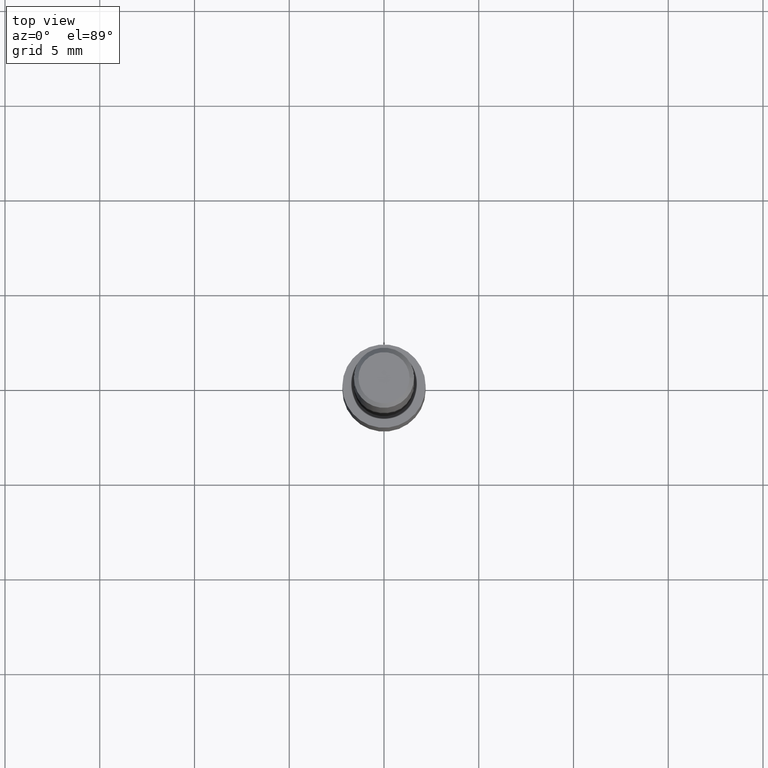
[diagram: clean part render]
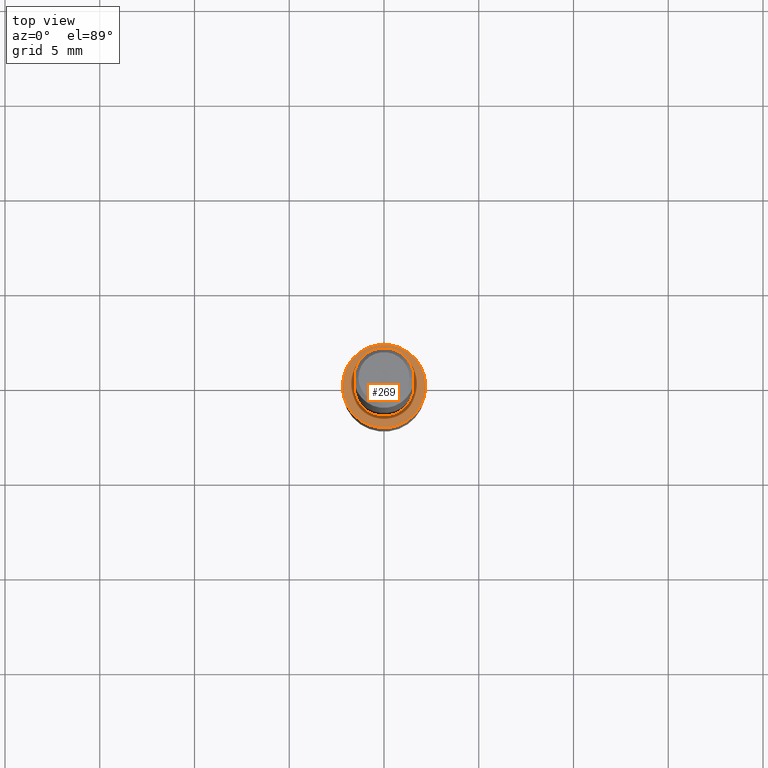
[diagram: same view with one face highlighted and labeled with its STEP entity id]
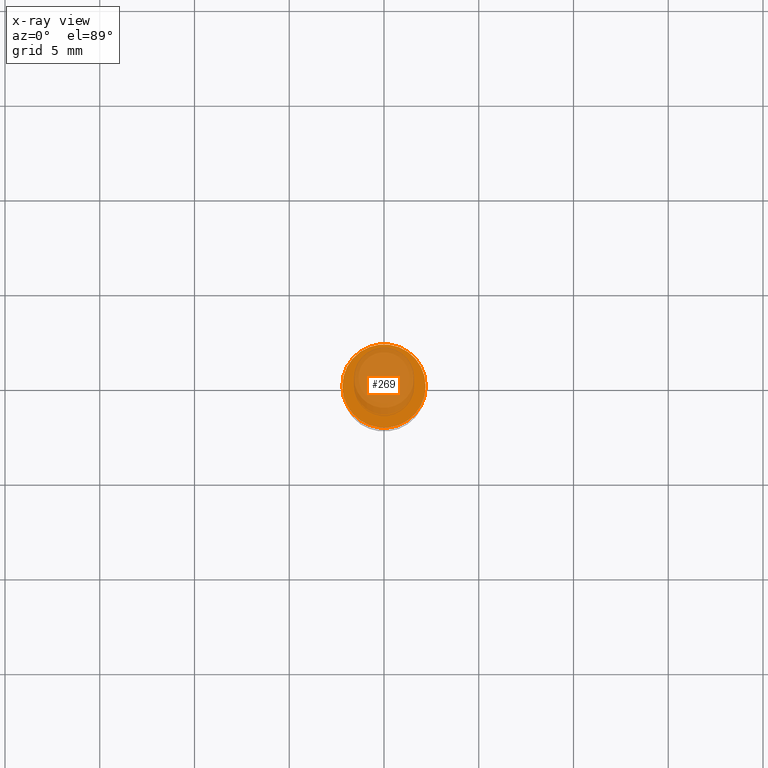
[diagram: x-ray of the same camera — body ghosted, the highlighted face saturated]
A machine part, top view. The second image highlights one B-rep face of the part: STEP entity #269.
The next image is the same camera in x-ray: the body ghosted, the highlighted face saturated — about 60% of this face is hidden behind the body in this view.
In plain terms, the highlighted planar face has unit normal (0, -0, -1).
Its self-contained STEP definition (entity closure, byte-faithful):
#1 = DIRECTION ( 'NONE',  ( -2.445468806185136597E-29, 3.491481338843145583E-15, 1.000000000000000000 ) ) ;
#23 = CIRCLE ( 'NONE', #46, 0.08659999999999998255 ) ;
#42 = EDGE_CURVE ( 'NONE', #194, #179, #326, .T. ) ;
#45 = FACE_OUTER_BOUND ( 'NONE', #239, .T. ) ;
#46 = AXIS2_PLACEMENT_3D ( 'NONE', #281, #1, #272 ) ;
#56 = CARTESIAN_POINT ( 'NONE',  ( -0.08659999999999998255, -3.678524740115566939E-15, -1.000000000000000222 ) ) ;
#102 = DIRECTION ( 'NONE',  ( -1.000000000000000000, 6.982962677686265922E-15, -4.876176775795935793E-29 ) ) ;
#146 = DIRECTION ( 'NONE',  ( -2.445468806185136597E-29, 3.491481338843145583E-15, 1.000000000000000000 ) ) ;
#152 = PLANE ( 'NONE',  #327 ) ;
#174 = CARTESIAN_POINT ( 'NONE',  ( 3.546877153810406601E-29, -1.914201896773709449E-15, -1.000000000000000222 ) ) ;
#179 = VERTEX_POINT ( 'NONE', #285 ) ;
#184 = DIRECTION ( 'NONE',  ( 2.438088387897960049E-29, -3.491481338843145188E-15, -1.000000000000000000 ) ) ;
#194 = VERTEX_POINT ( 'NONE', #56 ) ;
#219 = ORIENTED_EDGE ( 'NONE', *, *, #278, .T. ) ;
#239 = EDGE_LOOP ( 'NONE', ( #219, #271 ) ) ;
#245 = AXIS2_PLACEMENT_3D ( 'NONE', #298, #146, #248 ) ;
#248 = DIRECTION ( 'NONE',  ( 1.000000000000000000, -6.982962677686269866E-15, 0.000000000000000000 ) ) ;
#269 = ADVANCED_FACE ( 'NONE', ( #45 ), #152, .F. ) ;
#271 = ORIENTED_EDGE ( 'NONE', *, *, #42, .T. ) ;
#272 = DIRECTION ( 'NONE',  ( 1.000000000000000000, -6.982962677686269866E-15, 0.000000000000000000 ) ) ;
#278 = EDGE_CURVE ( 'NONE', #179, #194, #23, .T. ) ;
#281 = CARTESIAN_POINT ( 'NONE',  ( 2.445468806185136877E-29, -3.491481338843145977E-15, -1.000000000000000222 ) ) ;
#285 = CARTESIAN_POINT ( 'NONE',  ( 0.08659999999999998255, -4.096205906730776901E-15, -1.000000000000000222 ) ) ;
#298 = CARTESIAN_POINT ( 'NONE',  ( 2.445468806185136877E-29, -3.491481338843145977E-15, -1.000000000000000222 ) ) ;
#326 = CIRCLE ( 'NONE', #245, 0.08659999999999998255 ) ;
#327 = AXIS2_PLACEMENT_3D ( 'NONE', #174, #184, #102 ) ;